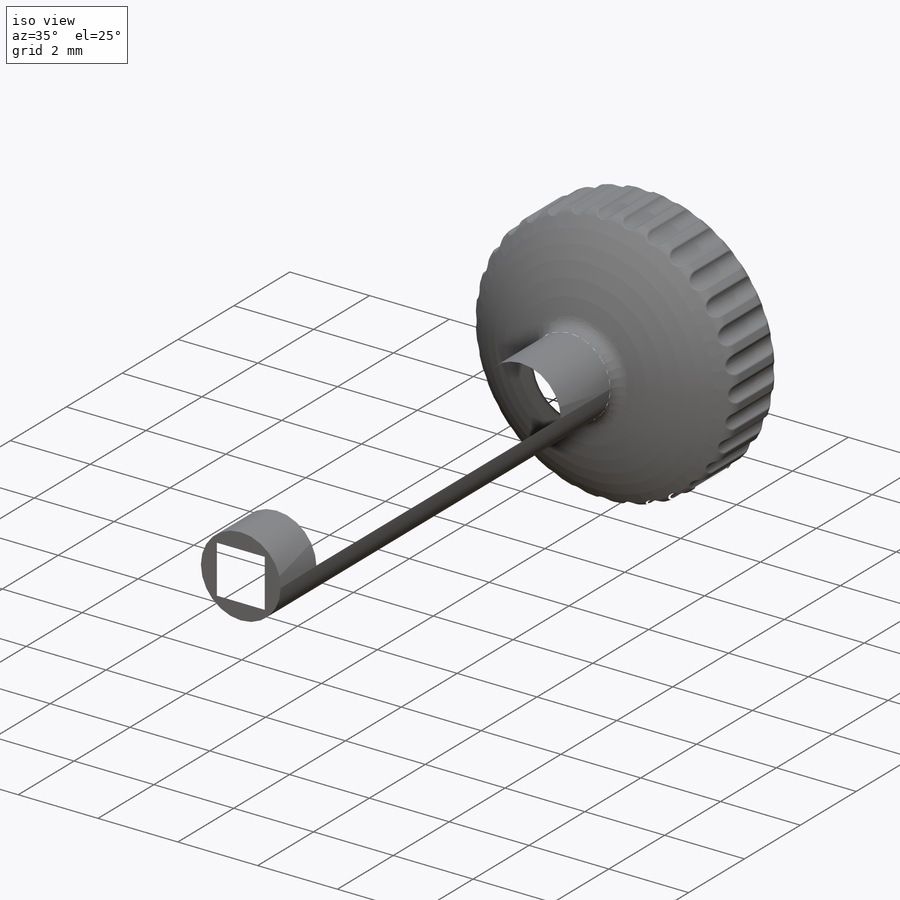
[diagram: iso view]
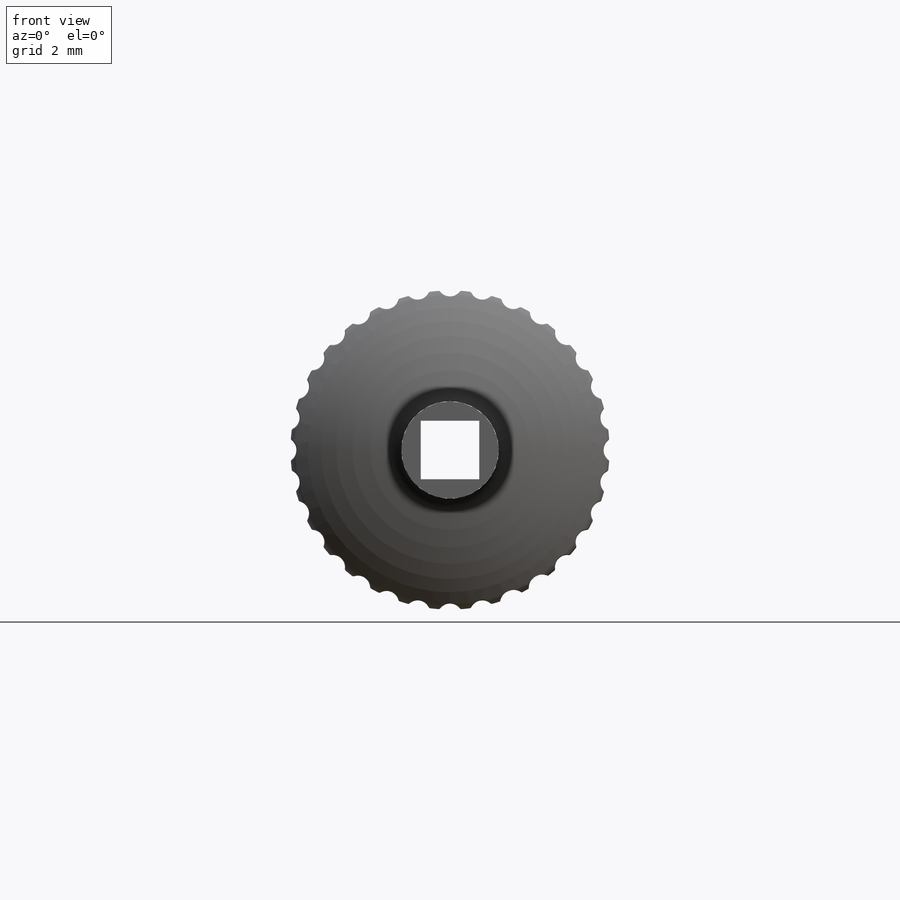
[diagram: front view]
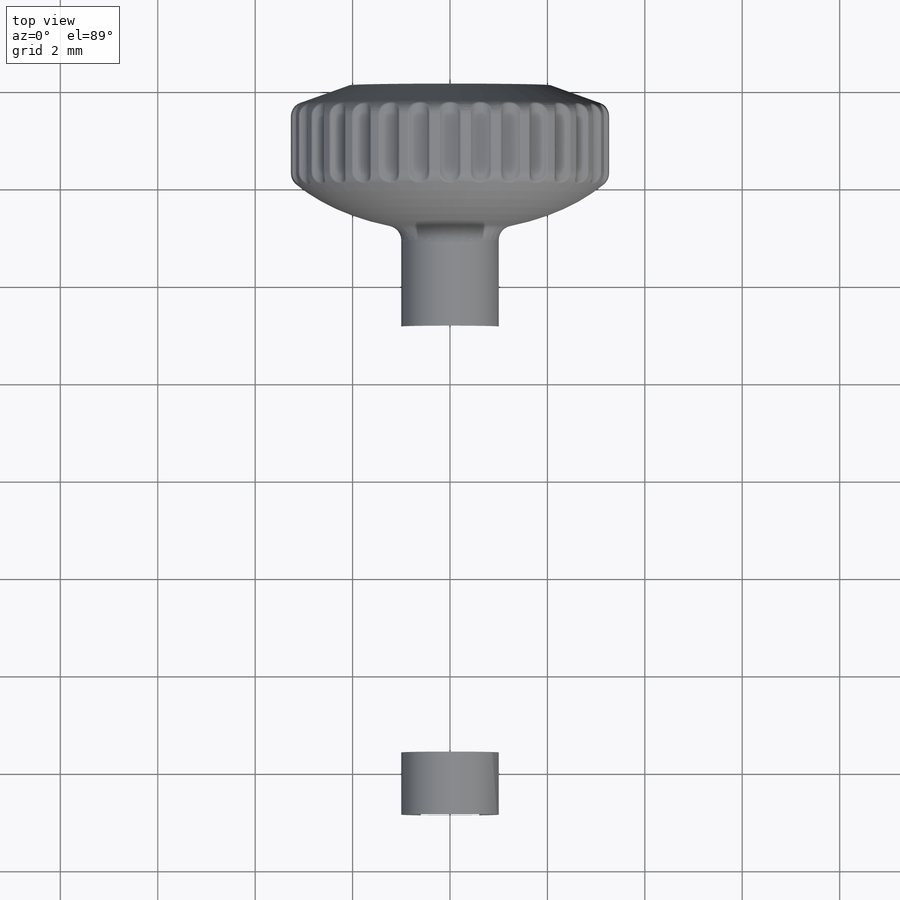
[diagram: top view]
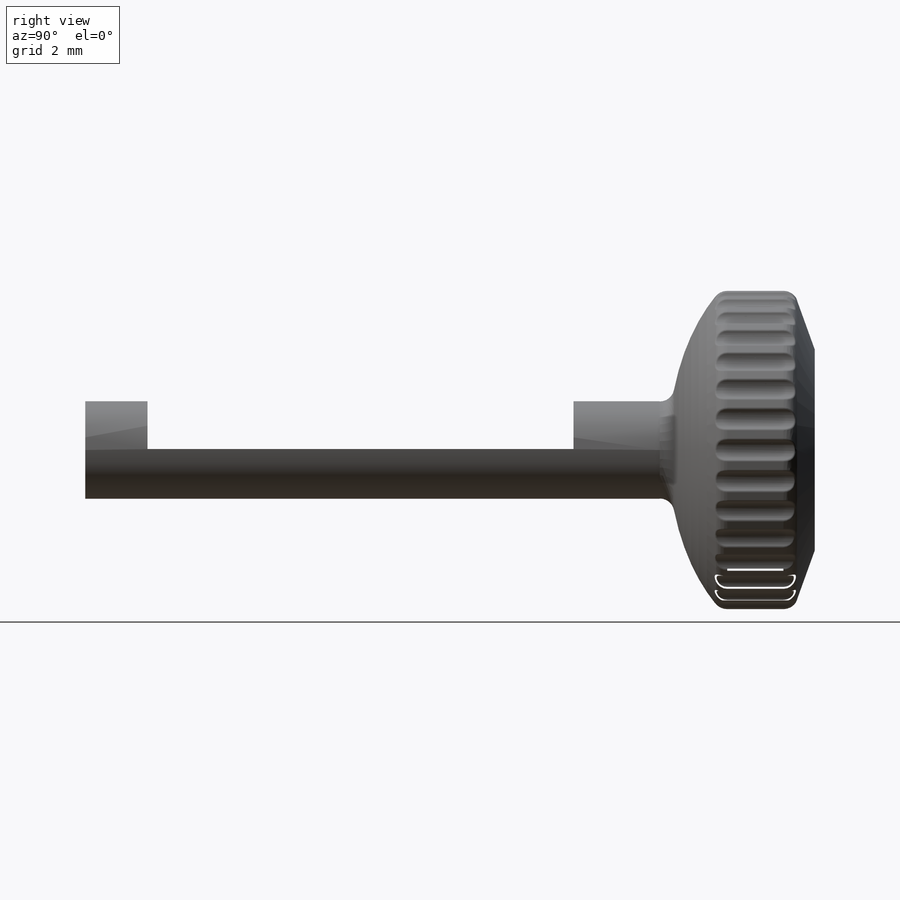
[diagram: right view]
SOLIDWORKS PART (.sldprt)
format: sldprt  version: not decoded by parser v0  size: 1,265,664 bytes
history: native  units: mm
features: sketch x8, fillet x7, cut_extrude x4, revolve x2, material x1, extrude x1, plane x1 (+13 scaffold rows collapsed)
feature tree (37):
  scaffold x13  (default folders/planes/origin — collapsed)
  material  "Matériau <non spécifié>"
  sketch  "Sketch1"  dims[D1=1.5mm D2=2.0mm]
  revolve  "Revolve1"  Angle=360deg
  sketch  "Sketch2"  dims[D1=2.0mm]
  extrude  "Boss-Extrude1"  Depth=15mm
  fillet  "Fillet1"  Radius=0.3mm
  fillet  "Fillet2"  Radius=0.3mm
  fillet  "Fillet3"  Radius=0.3mm
  fillet  "Fillet4"  Radius=0.75mm
  sketch  "Sketch3"  dims[D2=0.5mm D1=32.0]
  cut_extrude  "Cut-Extrude1"  Depth=10mm
  fillet  "Fillet5"  Radius=0.05mm
  sketch  "Sketch4"  dims[c1.D1=1.5mm c1.D2=2.5mm c1.D3=~3.89587mm c2.D2=1.2mm c2.D1=1.2mm c2.D3=~0.66967mm]
  cut_extrude  "Cut-Extrude4"  Depth=3mm
  sketch  "Sketch5"
  cut_extrude  "Cut-Extrude5"  Depth=1.5mm
  sketch  "Sketch6"  dims[D1=4.0mm]
  cut_extrude  "Cut-Extrude6"  Depth=0.2mm
  fillet  "Fillet6"  Radius=0.05mm
  plane  "Plan1"
  sketch  "Esquisse1"  dims[D2=4.0mm D1=0.0mm]
  sketch  "Esquisse2"  dims[D1=0.1mm]
  revolve  "Révolution1"  Angle=360deg
  fillet  "Congé1"  Radius=0.05mm
decode coverage: 21 of 22 modeling features carry decoded parameters
note: ~ marks probable driven/reference dimensions
note: suppression state not decoded; provenance and decode notes live in map.json
